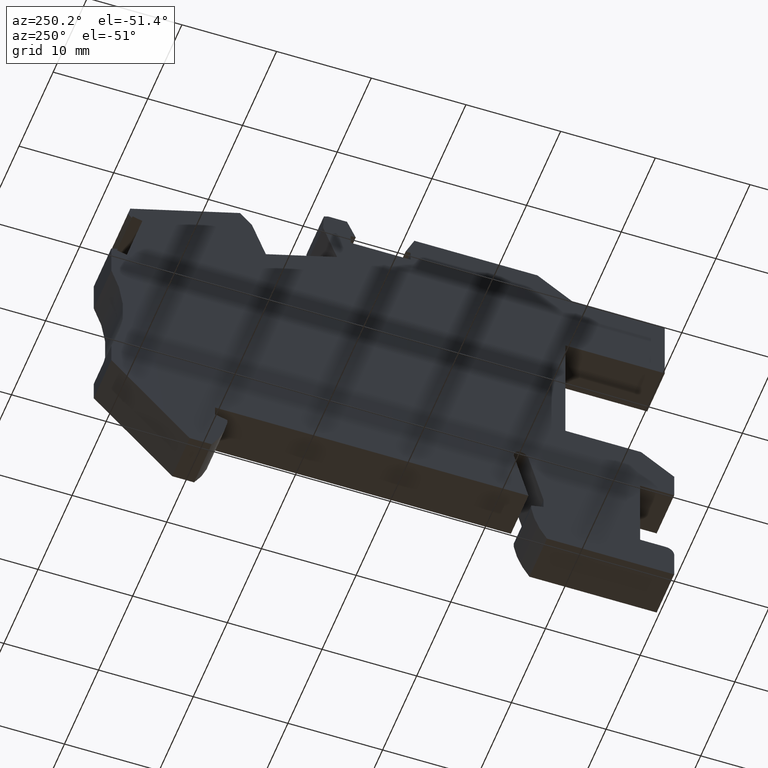
[diagram: clean part render]
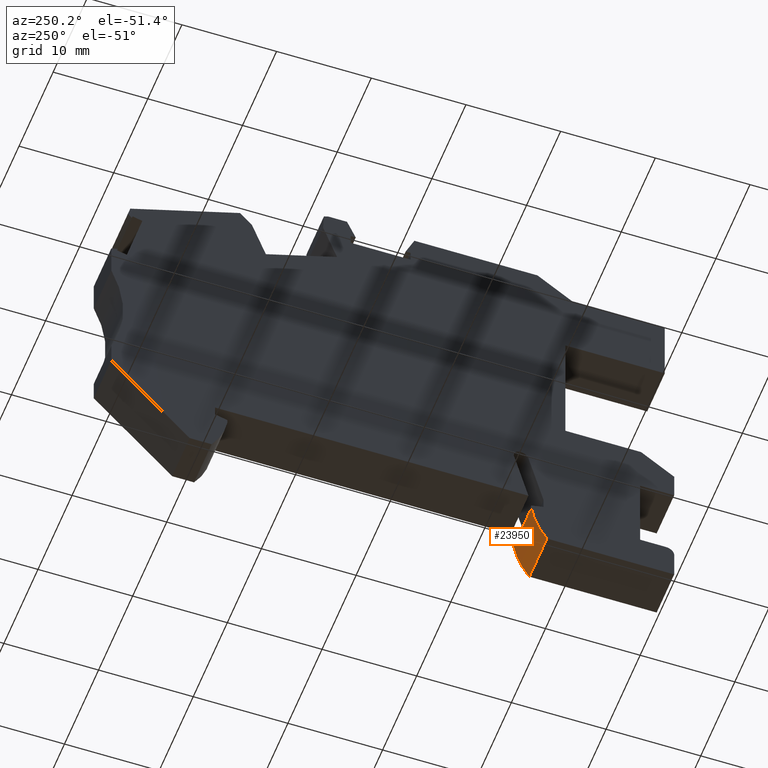
[diagram: same view with one face highlighted and labeled with its STEP entity id]
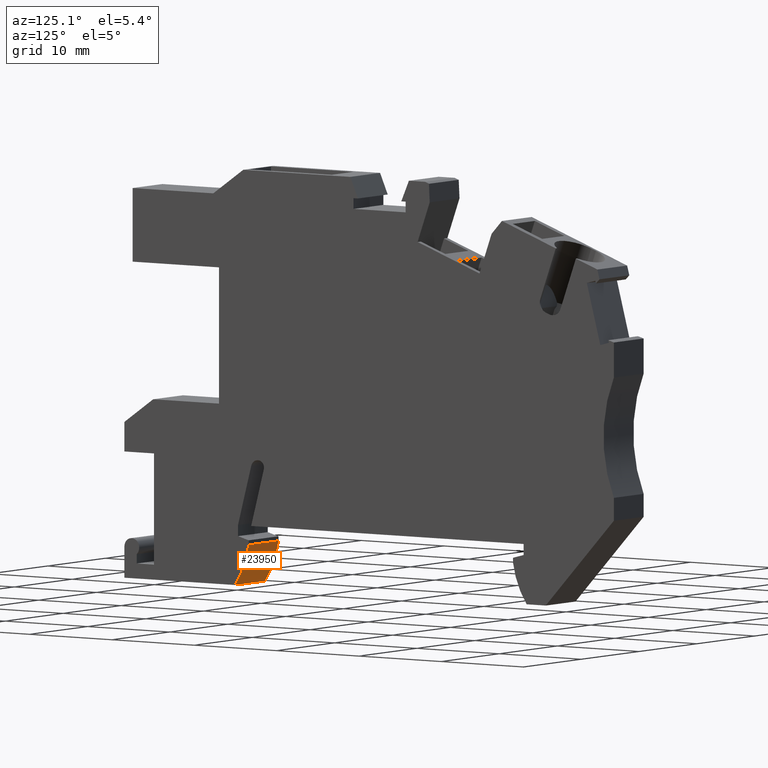
[diagram: same view with one face highlighted and labeled with its STEP entity id]
A machine part, auxiliary view. The second image highlights one B-rep face of the part: STEP entity #23950.
A second angle (auxiliary view) of the same face is appended — the face is thin or edge-on in the first view.
In plain terms, the highlighted cylindrical surface (partial cylindrical patch) has radius 9.5 mm, axis along (1, 0, -0).
Its self-contained STEP definition (entity closure, byte-faithful):
#14450=CARTESIAN_POINT('',(18.9548874062867,-3.88679163719603,
-1.4432899320127E-14));
#14460=VERTEX_POINT('',#14450);
#17280=CARTESIAN_POINT('',(20.1018012370323,0.384821958285971,
-1.4432899320127E-14));
#17290=VERTEX_POINT('',#17280);
#17320=CARTESIAN_POINT('',(10.6053593749795,0.644806497501714,
-1.4432899320127E-14));
#17330=DIRECTION('',(0.,0.,1.));
#17340=DIRECTION('',(0.992546151641322,0.121869343405147,0.));
#17350=AXIS2_PLACEMENT_3D('',#17320,#17330,#17340);
#17360=CIRCLE('',#17350,9.49999999999899);
#17370=EDGE_CURVE('',#14460,#17290,#17360,.T.);
#21280=CARTESIAN_POINT('',(10.6053593749795,0.644806497501714,
-5.14999999999998));
#21290=DIRECTION('',(0.,0.,1.));
#21300=DIRECTION('',(0.992546151641322,0.121869343405147,0.));
#21310=AXIS2_PLACEMENT_3D('',#21280,#21290,#21300);
#21320=CIRCLE('',#21310,9.49999999999899);
#21330=CARTESIAN_POINT('',(18.9548874062867,-3.88679163719603,
-5.14999999999998));
#21340=VERTEX_POINT('',#21330);
#21350=CARTESIAN_POINT('',(20.1018012370323,0.384821958285895,
-5.14999999999998));
#21360=VERTEX_POINT('',#21350);
#21370=EDGE_CURVE('',#21340,#21360,#21320,.T.);
#23740=CARTESIAN_POINT('',(10.6053593749795,0.644806497501714,
-1.00000000000003));
#23750=DIRECTION('',(0.,0.,1.));
#23760=DIRECTION('',(0.992546151641322,0.121869343405148,0.));
#23770=AXIS2_PLACEMENT_3D('',#23740,#23750,#23760);
#23780=CYLINDRICAL_SURFACE('',#23770,9.49999999999899);
#23790=ORIENTED_EDGE('',*,*,#17370,.F.);
#23800=CARTESIAN_POINT('',(20.1018012370323,0.38482195828592,
-1.00000000000003));
#23810=DIRECTION('',(0.,0.,1.));
#23820=VECTOR('',#23810,1.);
#23830=LINE('',#23800,#23820);
#23840=EDGE_CURVE('',#21360,#17290,#23830,.T.);
#23850=ORIENTED_EDGE('',*,*,#23840,.T.);
#23860=ORIENTED_EDGE('',*,*,#21370,.T.);
#23870=CARTESIAN_POINT('',(18.9548874062867,-3.88679163719603,
-1.00000000000003));
#23880=DIRECTION('',(0.,0.,1.));
#23890=VECTOR('',#23880,1.);
#23900=LINE('',#23870,#23890);
#23910=EDGE_CURVE('',#21340,#14460,#23900,.T.);
#23920=ORIENTED_EDGE('',*,*,#23910,.F.);
#23930=EDGE_LOOP('',(#23920,#23860,#23850,#23790));
#23940=FACE_OUTER_BOUND('',#23930,.T.);
#23950=ADVANCED_FACE('',(#23940),#23780,.T.);